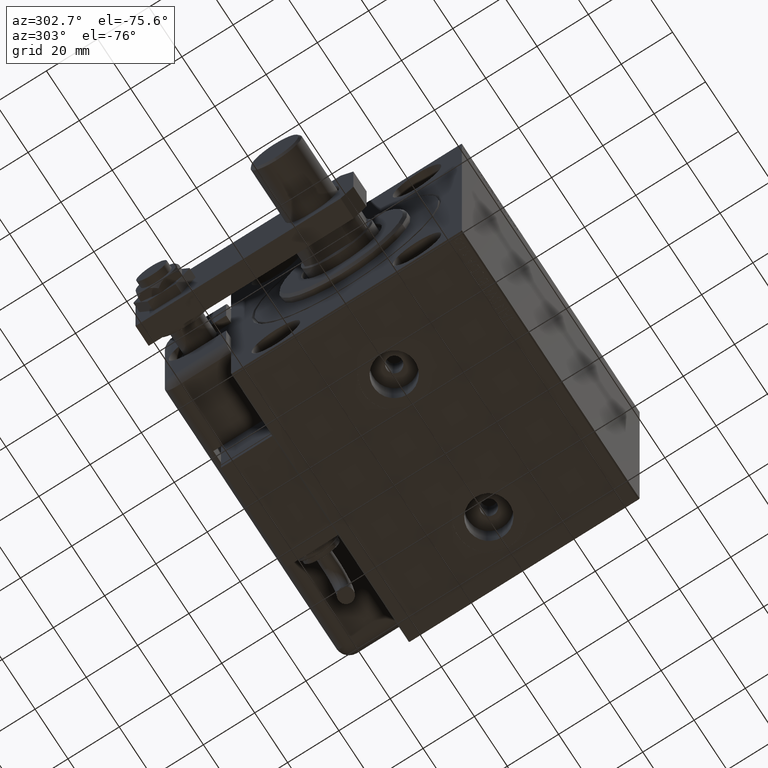
[diagram: clean part render]
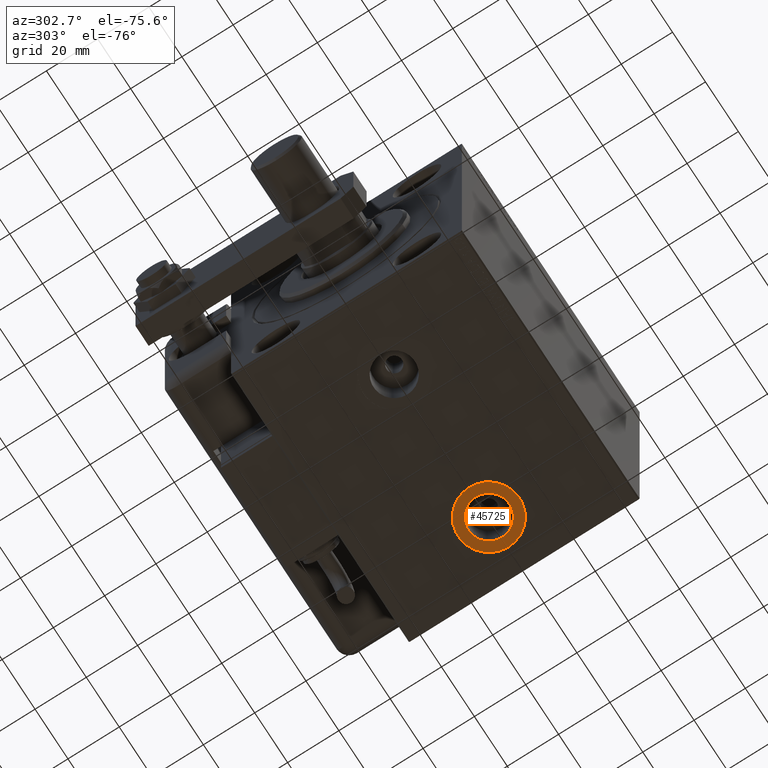
[diagram: same view with one face highlighted and labeled with its STEP entity id]
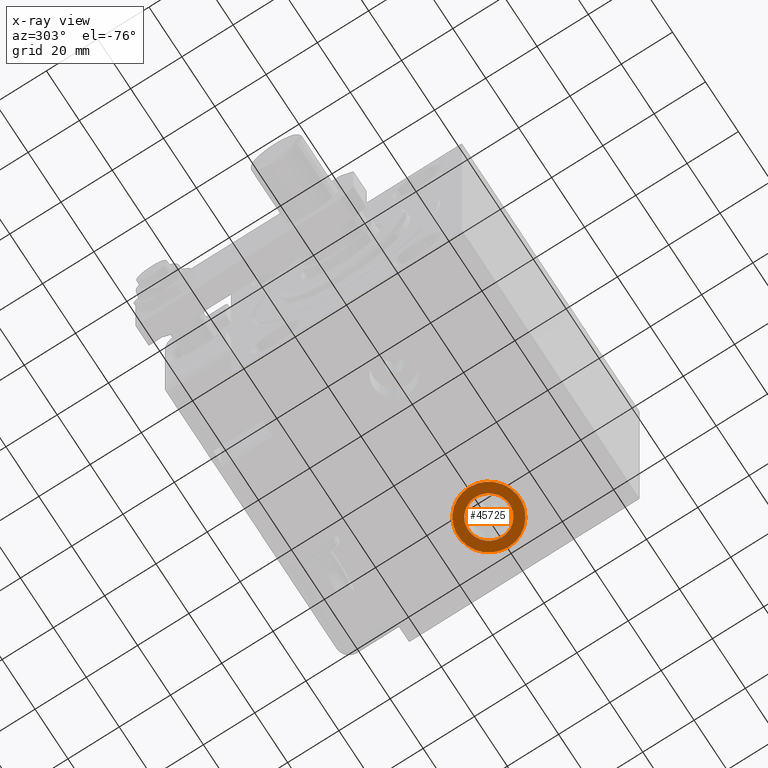
[diagram: x-ray of the same camera — body ghosted, the highlighted face saturated]
A machine part, auxiliary view. The second image highlights one B-rep face of the part: STEP entity #45725.
The next image is the same camera in x-ray: the body ghosted, the highlighted face saturated — about 0% of this face is hidden behind the body in this view.
In plain terms, the highlighted planar face has unit normal (0, 0, -1).
Its self-contained STEP definition (entity closure, byte-faithful):
#886 = DIRECTION ( 'NONE',  ( 0.000000000000000000, 0.000000000000000000, -1.000000000000000000 ) ) ;
#2667 = AXIS2_PLACEMENT_3D ( 'NONE', #24523, #886, #24842 ) ;
#3652 = DIRECTION ( 'NONE',  ( 0.000000000000000000, 0.000000000000000000, -1.000000000000000000 ) ) ;
#3754 = ORIENTED_EDGE ( 'NONE', *, *, #15273, .T. ) ;
#4922 = DIRECTION ( 'NONE',  ( 0.000000000000000000, 0.000000000000000000, -1.000000000000000000 ) ) ;
#5472 = EDGE_CURVE ( 'NONE', #18849, #27838, #47356, .T. ) ;
#9988 = CIRCLE ( 'NONE', #44796, 12.00000000000001066 ) ;
#10660 = AXIS2_PLACEMENT_3D ( 'NONE', #20258, #33102, #34554 ) ;
#13527 = VERTEX_POINT ( 'NONE', #60145 ) ;
#13663 = AXIS2_PLACEMENT_3D ( 'NONE', #24453, #44372, #43768 ) ;
#14594 = ORIENTED_EDGE ( 'NONE', *, *, #16550, .T. ) ;
#15273 = EDGE_CURVE ( 'NONE', #13527, #36294, #9988, .T. ) ;
#15589 = PLANE ( 'NONE',  #10660 ) ;
#16550 = EDGE_CURVE ( 'NONE', #36294, #13527, #27549, .T. ) ;
#18849 = VERTEX_POINT ( 'NONE', #27560 ) ;
#20258 = CARTESIAN_POINT ( 'NONE',  ( 86.50000000000000000, -1.272749711318452652E-14, -57.40000000000000568 ) ) ;
#24453 = CARTESIAN_POINT ( 'NONE',  ( 86.50000000000000000, -1.272749711318452652E-14, -57.40000000000000568 ) ) ;
#24523 = CARTESIAN_POINT ( 'NONE',  ( 86.50000000000000000, -1.272749711318452652E-14, -57.40000000000000568 ) ) ;
#24842 = DIRECTION ( 'NONE',  ( -1.000000000000000000, 0.000000000000000000, 0.000000000000000000 ) ) ;
#26284 = CARTESIAN_POINT ( 'NONE',  ( 78.41499999999999204, -1.272749711318452652E-14, -57.40000000000000568 ) ) ;
#27002 = CARTESIAN_POINT ( 'NONE',  ( 86.50000000000000000, -1.272749711318452652E-14, -57.40000000000000568 ) ) ;
#27549 = CIRCLE ( 'NONE', #13663, 12.00000000000001066 ) ;
#27560 = CARTESIAN_POINT ( 'NONE',  ( 94.58499999999999375, -1.173737017607389215E-14, -57.40000000000000568 ) ) ;
#27838 = VERTEX_POINT ( 'NONE', #26284 ) ;
#28226 = DIRECTION ( 'NONE',  ( -1.000000000000000000, 0.000000000000000000, 0.000000000000000000 ) ) ;
#30621 = ORIENTED_EDGE ( 'NONE', *, *, #53278, .F. ) ;
#33102 = DIRECTION ( 'NONE',  ( 0.000000000000000000, 0.000000000000000000, -1.000000000000000000 ) ) ;
#34554 = DIRECTION ( 'NONE',  ( -1.000000000000000000, 0.000000000000000000, -0.000000000000000000 ) ) ;
#34690 = AXIS2_PLACEMENT_3D ( 'NONE', #57240, #4922, #46948 ) ;
#36294 = VERTEX_POINT ( 'NONE', #59228 ) ;
#42526 = ORIENTED_EDGE ( 'NONE', *, *, #5472, .F. ) ;
#43768 = DIRECTION ( 'NONE',  ( -1.000000000000000000, 0.000000000000000000, 0.000000000000000000 ) ) ;
#44006 = EDGE_LOOP ( 'NONE', ( #3754, #14594 ) ) ;
#44217 = FACE_BOUND ( 'NONE', #45012, .T. ) ;
#44372 = DIRECTION ( 'NONE',  ( 0.000000000000000000, 0.000000000000000000, -1.000000000000000000 ) ) ;
#44796 = AXIS2_PLACEMENT_3D ( 'NONE', #27002, #3652, #28226 ) ;
#45012 = EDGE_LOOP ( 'NONE', ( #30621, #42526 ) ) ;
#45725 = ADVANCED_FACE ( 'NONE', ( #44217, #56483 ), #15589, .T. ) ;
#46948 = DIRECTION ( 'NONE',  ( -1.000000000000000000, 0.000000000000000000, 0.000000000000000000 ) ) ;
#47356 = CIRCLE ( 'NONE', #2667, 8.084999999999995524 ) ;
#53278 = EDGE_CURVE ( 'NONE', #27838, #18849, #55735, .T. ) ;
#55735 = CIRCLE ( 'NONE', #34690, 8.084999999999995524 ) ;
#56483 = FACE_OUTER_BOUND ( 'NONE', #44006, .T. ) ;
#57240 = CARTESIAN_POINT ( 'NONE',  ( 86.50000000000000000, -1.272749711318452652E-14, -57.40000000000000568 ) ) ;
#59228 = CARTESIAN_POINT ( 'NONE',  ( 98.50000000000000000, -1.125792095420770316E-14, -57.40000000000000568 ) ) ;
#60145 = CARTESIAN_POINT ( 'NONE',  ( 74.49999999999998579, -1.272749711318452652E-14, -57.40000000000000568 ) ) ;